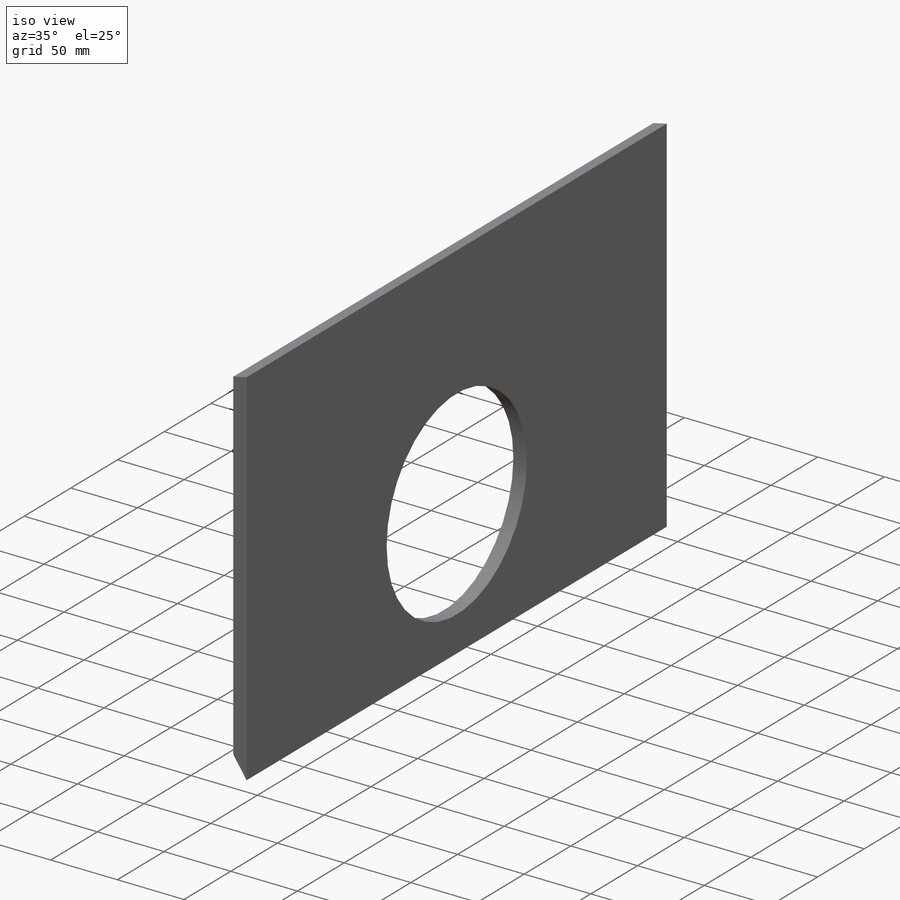
[diagram: iso view]
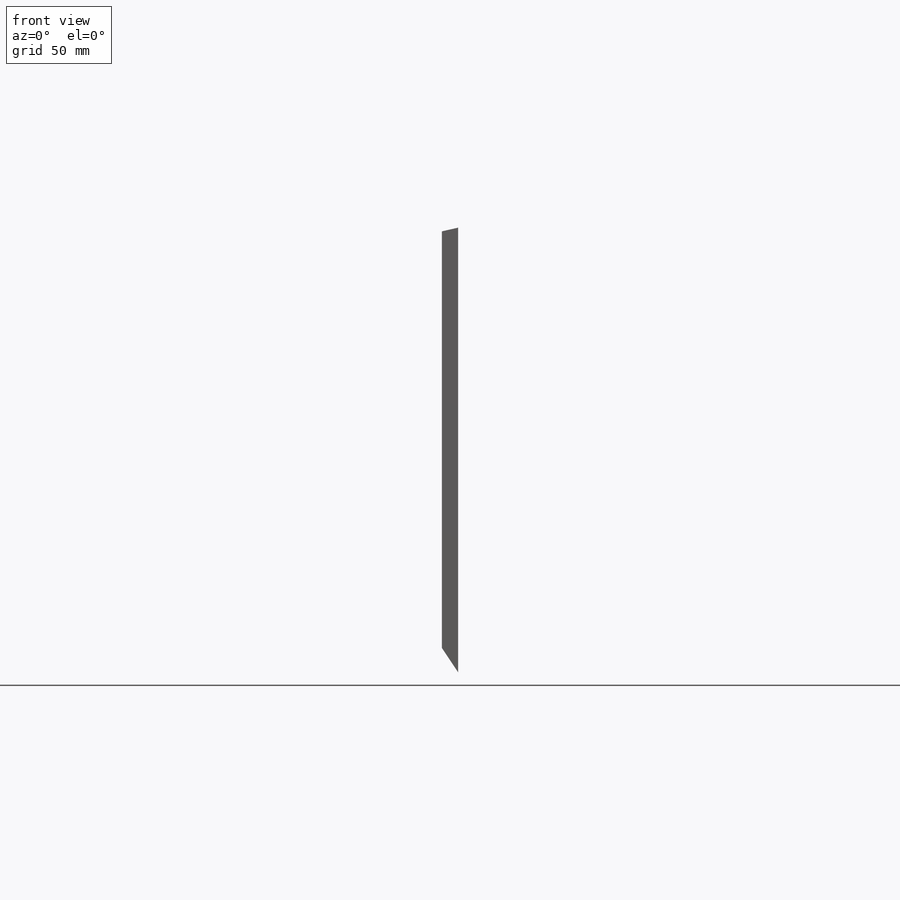
[diagram: front view]
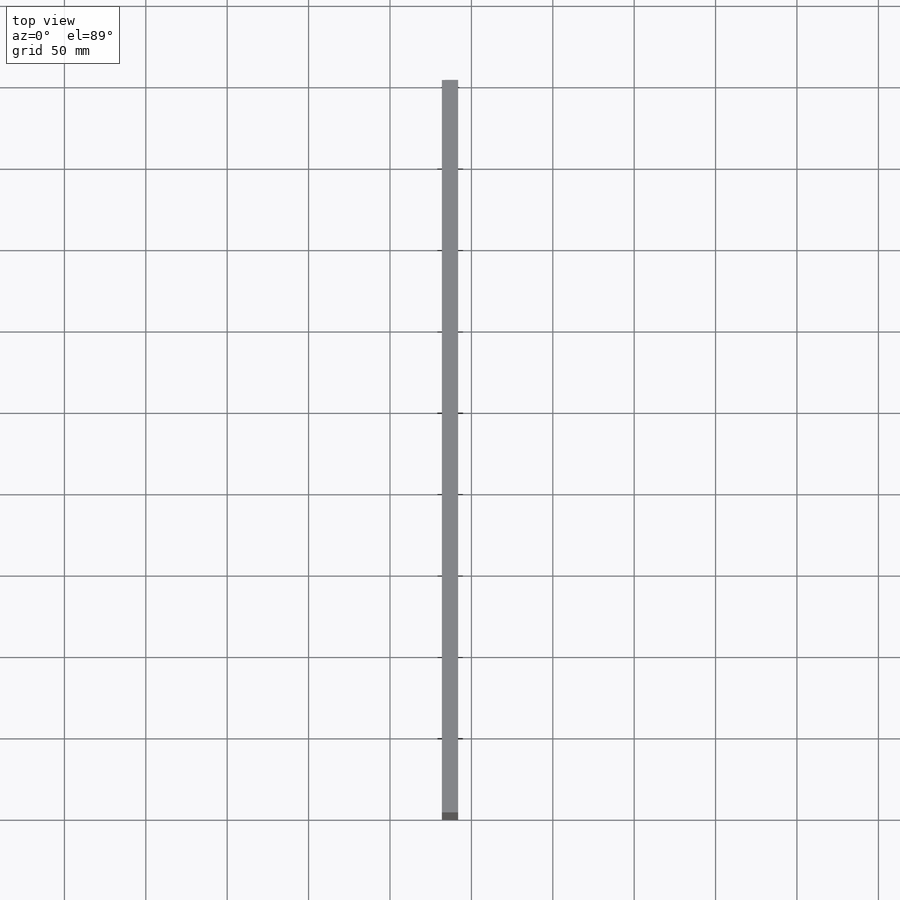
[diagram: top view]
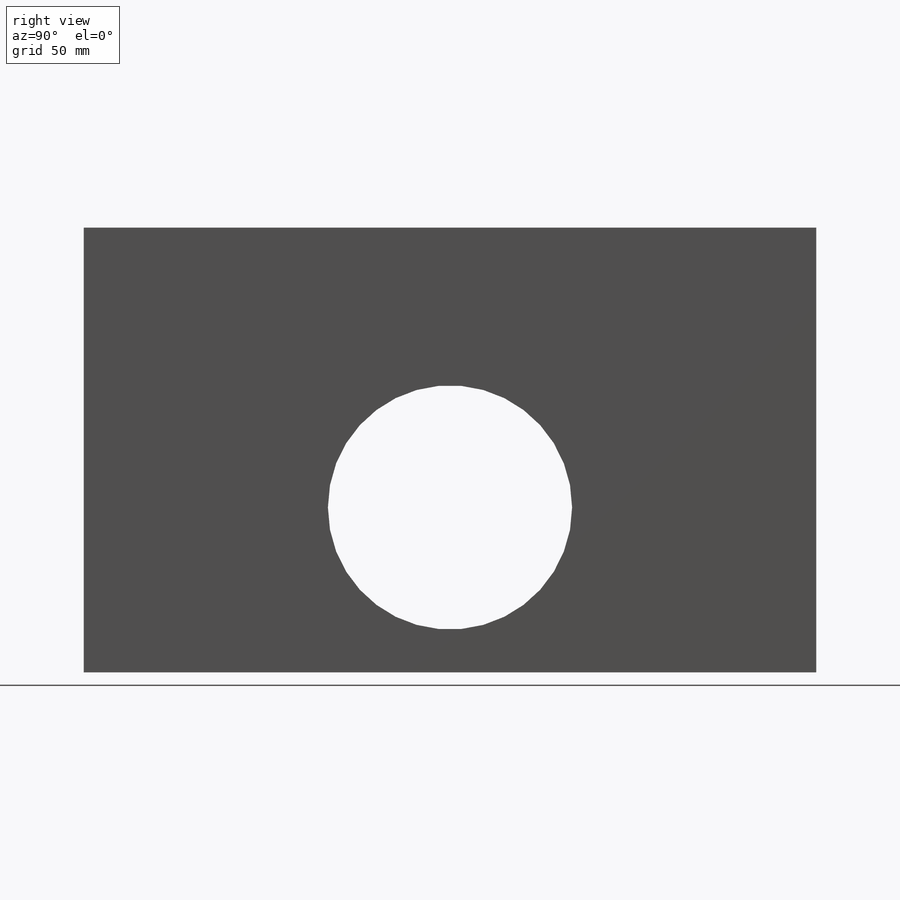
[diagram: right view]
SOLIDWORKS PART (.sldprt)
format: sldprt  version: not decoded by parser v0  size: 182,784 bytes
history: native  units: mm
features: sketch x4, plane x3, material x1, extrude x1, hole x1 (+9 scaffold rows collapsed)
feature tree (19):
  scaffold x9  (default folders/planes/origin — collapsed)
  material  "Material <nicht festgelegt>"
  plane  "Ebene vorne"
  plane  "Ebene oben"
  plane  "Ebene rechts"
  sketch  "Skizze1"  dims[c1.D1=365.0mm c1.D2=365.0mm c1.D3=10.0mm c1.D4=195.0mm c1.D5=5.0mm c1.D6=15.0mm c1.D7=5.0mm c2.D6=15.0mm c2.D7=4.0mm c2.D5=99.0mm c2.D8=10.0mm c2.D9=~152.427477mm c3.D9=~179.780388deg c4.D9=5.0mm c4.D10=5.0mm c4.D11=5.0mm c4.D12=~167.099616mm c5.D12=~179.780388deg c6.D12=~167.099616mm c7.D12=~179.780388deg c8.D12=5.0mm c8.D13=10.0mm c8.D14=10.0mm c8.D15=5.0mm c8.D11=10.0mm]
  extrude  "Aufsatz-Linear austragen1"  Depth=450mm
  sketch  "Skizze2"  dims[D1=225.0mm D2=86.3mm]
  hole  "Ø15.0 (15) Durchmesser Bohrung1"  Diameter=150mm Depth=10mm
  sketch  "3D-Skizze1"
  sketch  "Skizze4"  dims[hole-wizard template sketch: 59 standard entries collapsed; hole parameters kept: c18.Bohrerdurchmesser=150.0mm c18.Bohrungstiefe=10.0mm]
decode coverage: 5 of 6 modeling features carry decoded parameters
note: ~ marks probable driven/reference dimensions
note: suppression state not decoded; provenance and decode notes live in map.json
